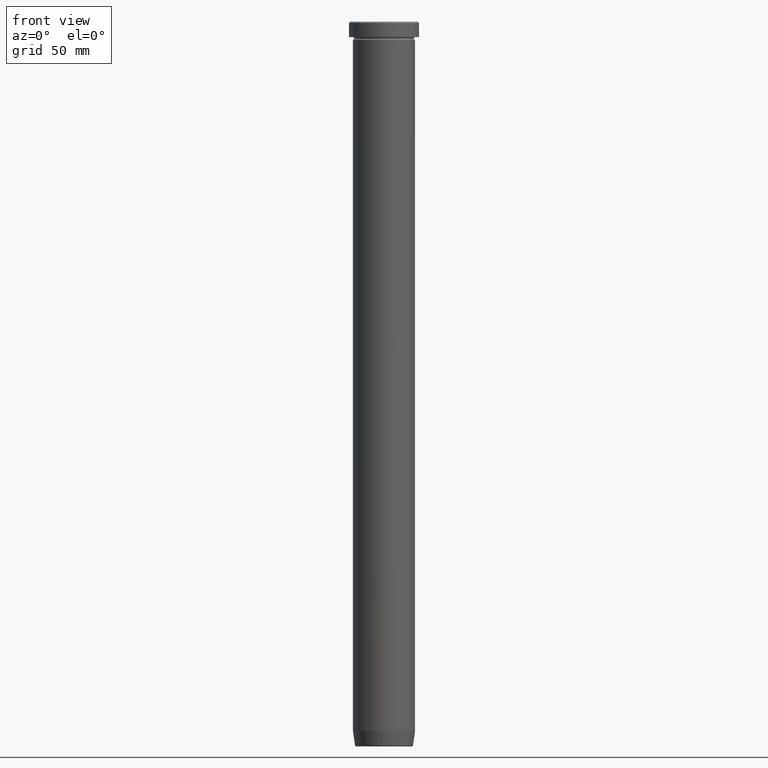
[diagram: clean part render]
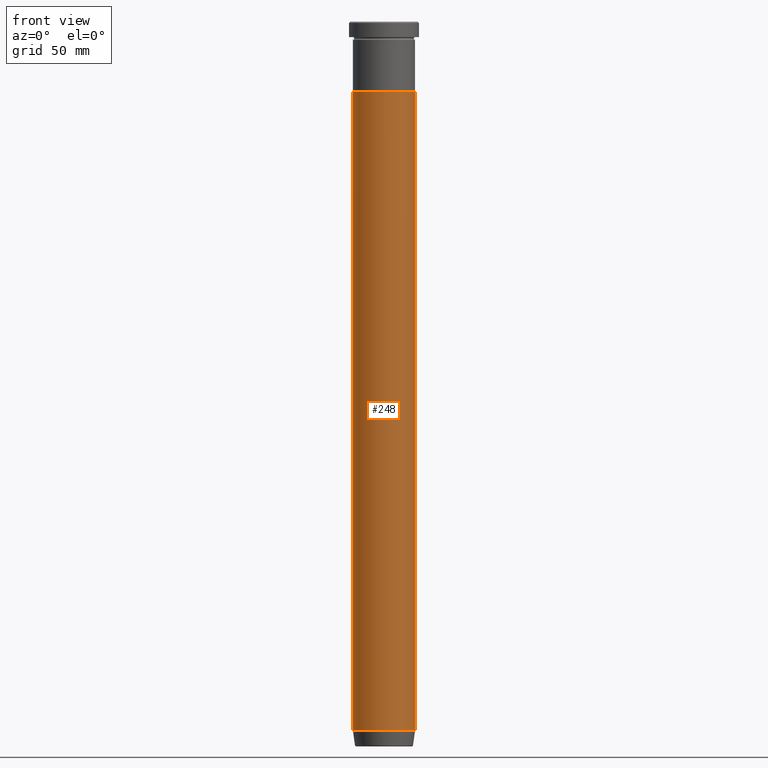
[diagram: same view with one face highlighted and labeled with its STEP entity id]
A machine part, front view. The second image highlights one B-rep face of the part: STEP entity #248.
In plain terms, the highlighted cylindrical surface (edge-blend (fillet) strip) has radius 12 mm, axis along (-0, -0, 1).
Its self-contained STEP definition (entity closure, byte-faithful):
#5 = EDGE_CURVE ( 'NONE', #509, #226, #549, .T. ) ;
#6 = EDGE_LOOP ( 'NONE', ( #351, #67, #415, #108 ) ) ;
#17 = LINE ( 'NONE', #204, #136 ) ;
#24 = CARTESIAN_POINT ( 'NONE',  ( 12.00000000000000000, 0.000000000000000000, 0.000000000000000000 ) ) ;
#31 = VECTOR ( 'NONE', #158, 1000.000000000000000 ) ;
#48 = AXIS2_PLACEMENT_3D ( 'NONE', #458, #368, #558 ) ;
#53 = DIRECTION ( 'NONE',  ( -0.000000000000000000, -0.000000000000000000, 1.000000000000000000 ) ) ;
#65 = VERTEX_POINT ( 'NONE', #190 ) ;
#67 = ORIENTED_EDGE ( 'NONE', *, *, #392, .T. ) ;
#108 = ORIENTED_EDGE ( 'NONE', *, *, #5, .F. ) ;
#136 = VECTOR ( 'NONE', #267, 1000.000000000000000 ) ;
#147 = EDGE_CURVE ( 'NONE', #479, #509, #17, .T. ) ;
#158 = DIRECTION ( 'NONE',  ( -0.000000000000000000, -0.000000000000000000, 1.000000000000000000 ) ) ;
#179 = DIRECTION ( 'NONE',  ( 1.000000000000000000, 0.000000000000000000, 0.000000000000000000 ) ) ;
#190 = CARTESIAN_POINT ( 'NONE',  ( 12.00000000000000000, 0.000000000000000000, -274.0000000000000000 ) ) ;
#204 = CARTESIAN_POINT ( 'NONE',  ( -12.00000000000000000, 1.469576158976823947E-15, 0.000000000000000000 ) ) ;
#226 = VERTEX_POINT ( 'NONE', #295 ) ;
#230 = AXIS2_PLACEMENT_3D ( 'NONE', #399, #576, #179 ) ;
#248 = ADVANCED_FACE ( 'NONE', ( #395 ), #544, .T. ) ;
#267 = DIRECTION ( 'NONE',  ( -0.000000000000000000, -0.000000000000000000, 1.000000000000000000 ) ) ;
#279 = CIRCLE ( 'NONE', #48, 12.00000000000000000 ) ;
#286 = CARTESIAN_POINT ( 'NONE',  ( 0.000000000000000000, 0.000000000000000000, -27.00000000000000000 ) ) ;
#295 = CARTESIAN_POINT ( 'NONE',  ( 12.00000000000000000, 0.000000000000000000, -27.00000000000000000 ) ) ;
#351 = ORIENTED_EDGE ( 'NONE', *, *, #147, .F. ) ;
#362 = AXIS2_PLACEMENT_3D ( 'NONE', #286, #53, #417 ) ;
#368 = DIRECTION ( 'NONE',  ( -0.000000000000000000, -0.000000000000000000, 1.000000000000000000 ) ) ;
#392 = EDGE_CURVE ( 'NONE', #479, #65, #279, .T. ) ;
#395 = FACE_OUTER_BOUND ( 'NONE', #6, .T. ) ;
#399 = CARTESIAN_POINT ( 'NONE',  ( 0.000000000000000000, 0.000000000000000000, 0.000000000000000000 ) ) ;
#415 = ORIENTED_EDGE ( 'NONE', *, *, #585, .T. ) ;
#417 = DIRECTION ( 'NONE',  ( 1.000000000000000000, 0.000000000000000000, 0.000000000000000000 ) ) ;
#458 = CARTESIAN_POINT ( 'NONE',  ( 0.000000000000000000, 0.000000000000000000, -274.0000000000000000 ) ) ;
#479 = VERTEX_POINT ( 'NONE', #520 ) ;
#483 = LINE ( 'NONE', #24, #31 ) ;
#509 = VERTEX_POINT ( 'NONE', #511 ) ;
#511 = CARTESIAN_POINT ( 'NONE',  ( -12.00000000000000000, 1.469576158976823947E-15, -27.00000000000000000 ) ) ;
#520 = CARTESIAN_POINT ( 'NONE',  ( -12.00000000000000000, 1.469576158976823947E-15, -274.0000000000000000 ) ) ;
#544 = CYLINDRICAL_SURFACE ( 'NONE', #230, 12.00000000000000000 ) ;
#549 = CIRCLE ( 'NONE', #362, 12.00000000000000000 ) ;
#558 = DIRECTION ( 'NONE',  ( 1.000000000000000000, 0.000000000000000000, 0.000000000000000000 ) ) ;
#576 = DIRECTION ( 'NONE',  ( -0.000000000000000000, -0.000000000000000000, 1.000000000000000000 ) ) ;
#585 = EDGE_CURVE ( 'NONE', #65, #226, #483, .T. ) ;